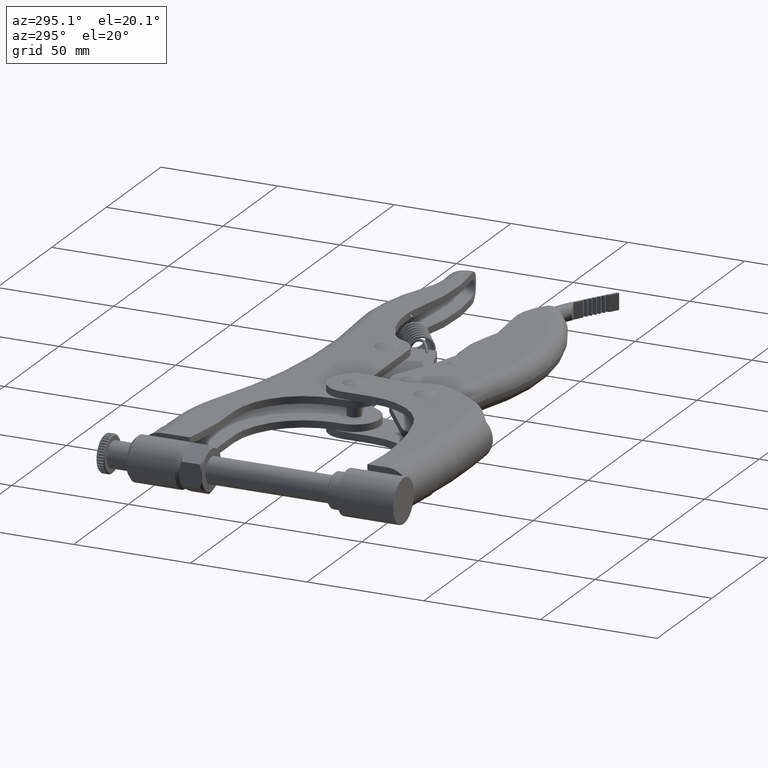
[diagram: clean part render]
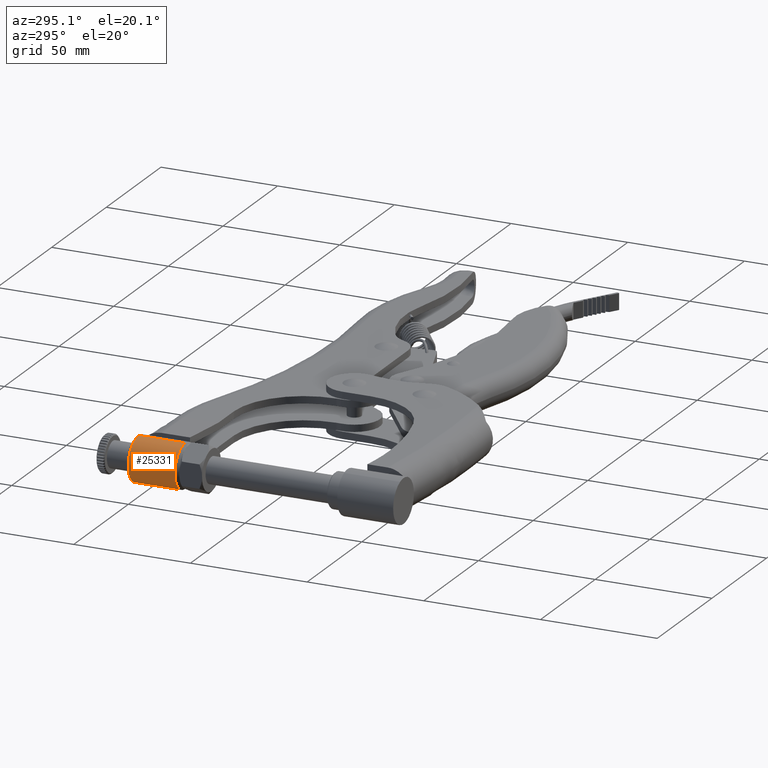
[diagram: same view with one face highlighted and labeled with its STEP entity id]
A machine part, auxiliary view. The second image highlights one B-rep face of the part: STEP entity #25331.
In plain terms, the highlighted cylindrical surface (edge-blend (fillet) strip) has radius 9.5 mm, axis along (-0, -1, -0).
Its self-contained STEP definition (entity closure, byte-faithful):
#4 = DIRECTION ( 'NONE',  ( -0.0000000000000000000, 1.000000000000000000, -0.0000000000000000000 ) ) ;
#511 = LINE ( 'NONE', #8182, #12584 ) ;
#657 = CARTESIAN_POINT ( 'NONE',  ( -88.50000000000001400, 50.99999999999997900, 9.499999999999996400 ) ) ;
#1597 = CARTESIAN_POINT ( 'NONE',  ( -88.50000000000001400, 30.99999999999998200, -9.500000000000003600 ) ) ;
#1712 = AXIS2_PLACEMENT_3D ( 'NONE', #5401, #4, #3126 ) ;
#1867 = VERTEX_POINT ( 'NONE', #6442 ) ;
#2848 = VECTOR ( 'NONE', #3297, 1000.000000000000000 ) ;
#3126 = DIRECTION ( 'NONE',  ( 0.0000000000000000000, 0.0000000000000000000, 1.000000000000000000 ) ) ;
#3297 = DIRECTION ( 'NONE',  ( -0.0000000000000000000, -1.000000000000000000, -0.0000000000000000000 ) ) ;
#5349 = CIRCLE ( 'NONE', #20083, 9.500000000000000000 ) ;
#5401 = CARTESIAN_POINT ( 'NONE',  ( -88.50000000000001400, 30.99999999999998200, -3.647403992558283900E-015 ) ) ;
#6442 = CARTESIAN_POINT ( 'NONE',  ( -88.50000000000001400, 30.99999999999998200, 9.499999999999996400 ) ) ;
#7168 = CARTESIAN_POINT ( 'NONE',  ( -88.50000000000001400, 52.49999999999997900, -3.647403992558283900E-015 ) ) ;
#8133 = DIRECTION ( 'NONE',  ( 0.0000000000000000000, -1.000000000000000000, 0.0000000000000000000 ) ) ;
#8182 = CARTESIAN_POINT ( 'NONE',  ( -88.50000000000001400, 52.49999999999997900, -9.500000000000003600 ) ) ;
#9786 = EDGE_CURVE ( 'NONE', #23085, #1867, #22727, .T. ) ;
#11366 = DIRECTION ( 'NONE',  ( -0.0000000000000000000, -1.000000000000000000, -0.0000000000000000000 ) ) ;
#11589 = ORIENTED_EDGE ( 'NONE', *, *, #23213, .T. ) ;
#11619 = EDGE_CURVE ( 'NONE', #15897, #1867, #23584, .T. ) ;
#12584 = VECTOR ( 'NONE', #18621, 1000.000000000000000 ) ;
#12846 = CARTESIAN_POINT ( 'NONE',  ( -88.50000000000001400, 50.99999999999997900, -9.500000000000003600 ) ) ;
#13140 = VERTEX_POINT ( 'NONE', #12846 ) ;
#13427 = EDGE_CURVE ( 'NONE', #15897, #13140, #5349, .T. ) ;
#14514 = EDGE_LOOP ( 'NONE', ( #20548, #24859, #11589, #22580 ) ) ;
#14879 = FACE_OUTER_BOUND ( 'NONE', #14514, .T. ) ;
#15897 = VERTEX_POINT ( 'NONE', #657 ) ;
#18621 = DIRECTION ( 'NONE',  ( -0.0000000000000000000, -1.000000000000000000, -0.0000000000000000000 ) ) ;
#19831 = DIRECTION ( 'NONE',  ( 0.0000000000000000000, 0.0000000000000000000, -1.000000000000000000 ) ) ;
#20083 = AXIS2_PLACEMENT_3D ( 'NONE', #20709, #8133, #22865 ) ;
#20548 = ORIENTED_EDGE ( 'NONE', *, *, #11619, .F. ) ;
#20709 = CARTESIAN_POINT ( 'NONE',  ( -88.50000000000001400, 50.99999999999997900, -3.647403992558283900E-015 ) ) ;
#21538 = CYLINDRICAL_SURFACE ( 'NONE', #22288, 9.500000000000000000 ) ;
#22288 = AXIS2_PLACEMENT_3D ( 'NONE', #7168, #11366, #19831 ) ;
#22580 = ORIENTED_EDGE ( 'NONE', *, *, #9786, .T. ) ;
#22727 = CIRCLE ( 'NONE', #1712, 9.500000000000000000 ) ;
#22865 = DIRECTION ( 'NONE',  ( 0.0000000000000000000, 0.0000000000000000000, 1.000000000000000000 ) ) ;
#23085 = VERTEX_POINT ( 'NONE', #1597 ) ;
#23213 = EDGE_CURVE ( 'NONE', #13140, #23085, #511, .T. ) ;
#23584 = LINE ( 'NONE', #27206, #2848 ) ;
#24859 = ORIENTED_EDGE ( 'NONE', *, *, #13427, .T. ) ;
#25331 = ADVANCED_FACE ( 'NONE', ( #14879 ), #21538, .T. ) ;
#27206 = CARTESIAN_POINT ( 'NONE',  ( -88.50000000000001400, 52.49999999999997900, 9.499999999999996400 ) ) ;